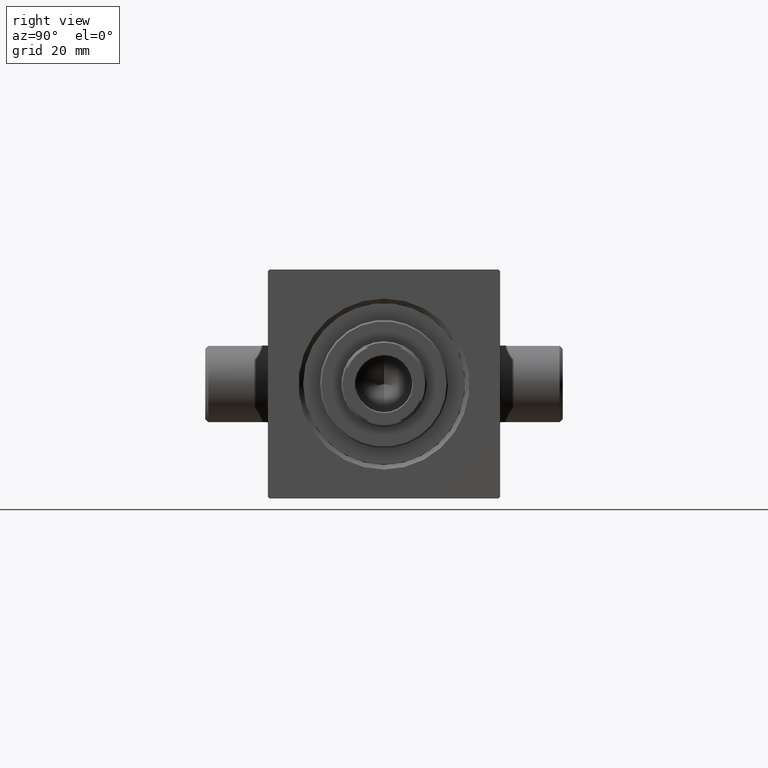
[diagram: clean part render]
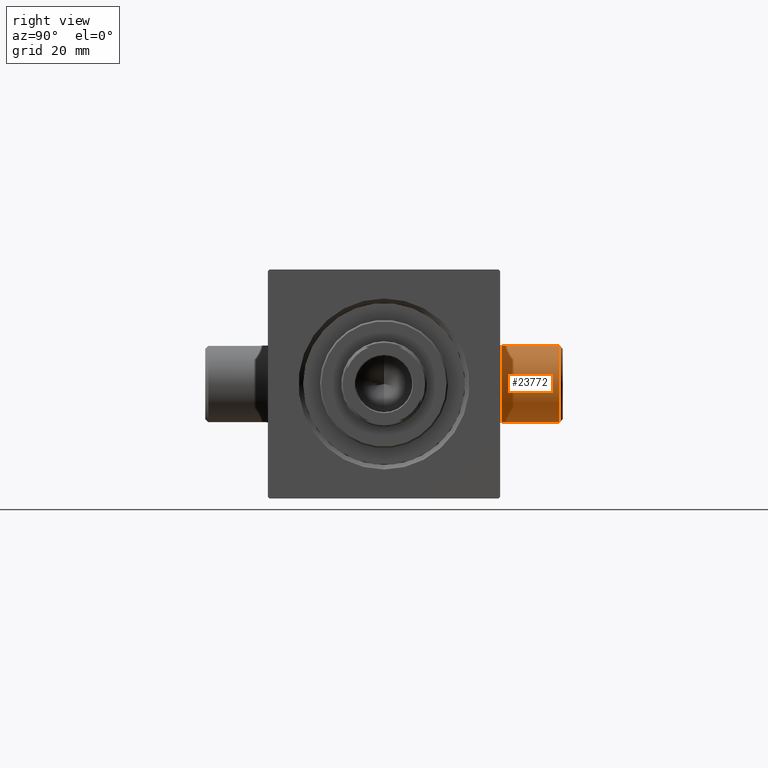
[diagram: same view with one face highlighted and labeled with its STEP entity id]
A machine part, right view. The second image highlights one B-rep face of the part: STEP entity #23772.
In plain terms, the highlighted cylindrical surface (partial cylindrical patch) has radius 12.5 mm, axis along (0, -1, 0).
Its self-contained STEP definition (entity closure, byte-faithful):
#1209 = DIRECTION ( 'NONE',  ( -0.000000000000000000, 1.000000000000000000, 0.000000000000000000 ) ) ;
#2958 = CYLINDRICAL_SURFACE ( 'NONE', #21493, 12.50000000000000000 ) ;
#4082 = ORIENTED_EDGE ( 'NONE', *, *, #33038, .T. ) ;
#6947 = DIRECTION ( 'NONE',  ( -0.000000000000000000, -1.000000000000000000, 8.673617379884036705E-17 ) ) ;
#7157 = CARTESIAN_POINT ( 'NONE',  ( 18.50000000000000000, 38.49999999999999289, -12.50000000000000355 ) ) ;
#8201 = VERTEX_POINT ( 'NONE', #31244 ) ;
#8870 = EDGE_LOOP ( 'NONE', ( #4082, #42163, #22242, #31398 ) ) ;
#9280 = EDGE_CURVE ( 'NONE', #12486, #36002, #21904, .T. ) ;
#10022 = LINE ( 'NONE', #38549, #40568 ) ;
#11530 = DIRECTION ( 'NONE',  ( 0.000000000000000000, 0.000000000000000000, 1.000000000000000000 ) ) ;
#11933 = CIRCLE ( 'NONE', #21626, 12.50000000000000000 ) ;
#12486 = VERTEX_POINT ( 'NONE', #43152 ) ;
#13978 = FACE_OUTER_BOUND ( 'NONE', #8870, .T. ) ;
#14458 = VECTOR ( 'NONE', #18071, 1000.000000000000000 ) ;
#15028 = LINE ( 'NONE', #32578, #14458 ) ;
#15930 = AXIS2_PLACEMENT_3D ( 'NONE', #28836, #1209, #36794 ) ;
#18071 = DIRECTION ( 'NONE',  ( -0.000000000000000000, -1.000000000000000000, 8.673617379884036705E-17 ) ) ;
#21493 = AXIS2_PLACEMENT_3D ( 'NONE', #38994, #6947, #42064 ) ;
#21626 = AXIS2_PLACEMENT_3D ( 'NONE', #29524, #26247, #11530 ) ;
#21904 = CIRCLE ( 'NONE', #15930, 12.50000000000000000 ) ;
#22242 = ORIENTED_EDGE ( 'NONE', *, *, #9280, .T. ) ;
#23772 = ADVANCED_FACE ( 'NONE', ( #13978 ), #2958, .T. ) ;
#24288 = DIRECTION ( 'NONE',  ( -0.000000000000000000, -1.000000000000000000, 8.673617379884036705E-17 ) ) ;
#26247 = DIRECTION ( 'NONE',  ( -0.000000000000000000, -1.000000000000000000, 8.673617379884055194E-17 ) ) ;
#28836 = CARTESIAN_POINT ( 'NONE',  ( 18.50000000000000000, 38.49999999999999289, -3.556183125752453755E-15 ) ) ;
#29524 = CARTESIAN_POINT ( 'NONE',  ( 18.50000000000000000, 57.49999999999995737, -5.204170427930417339E-15 ) ) ;
#31067 = VERTEX_POINT ( 'NONE', #42783 ) ;
#31244 = CARTESIAN_POINT ( 'NONE',  ( 18.50000000000000000, 57.49999999999995737, 12.49999999999999467 ) ) ;
#31398 = ORIENTED_EDGE ( 'NONE', *, *, #46027, .F. ) ;
#32578 = CARTESIAN_POINT ( 'NONE',  ( 18.50000000000000000, 38.50000000000000711, 12.49999999999999645 ) ) ;
#33038 = EDGE_CURVE ( 'NONE', #31067, #8201, #11933, .T. ) ;
#36002 = VERTEX_POINT ( 'NONE', #7157 ) ;
#36794 = DIRECTION ( 'NONE',  ( 0.000000000000000000, 0.000000000000000000, 1.000000000000000000 ) ) ;
#38549 = CARTESIAN_POINT ( 'NONE',  ( 18.50000000000000000, 38.50000000000000711, -12.50000000000000355 ) ) ;
#38994 = CARTESIAN_POINT ( 'NONE',  ( 18.50000000000000000, 38.50000000000000711, -3.556183125752455332E-15 ) ) ;
#40568 = VECTOR ( 'NONE', #24288, 1000.000000000000000 ) ;
#42064 = DIRECTION ( 'NONE',  ( 0.000000000000000000, 0.000000000000000000, -1.000000000000000000 ) ) ;
#42163 = ORIENTED_EDGE ( 'NONE', *, *, #43108, .T. ) ;
#42783 = CARTESIAN_POINT ( 'NONE',  ( 18.50000000000000000, 57.49999999999995737, -12.50000000000000711 ) ) ;
#43108 = EDGE_CURVE ( 'NONE', #8201, #12486, #15028, .T. ) ;
#43152 = CARTESIAN_POINT ( 'NONE',  ( 18.50000000000000000, 38.49999999999999289, 12.49999999999999645 ) ) ;
#46027 = EDGE_CURVE ( 'NONE', #31067, #36002, #10022, .T. ) ;